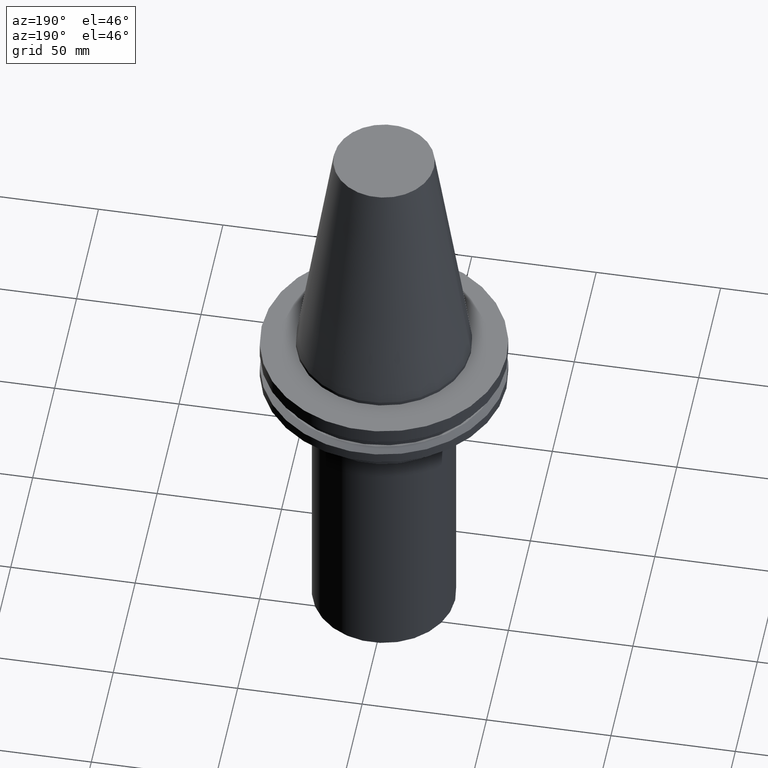
[diagram: clean part render]
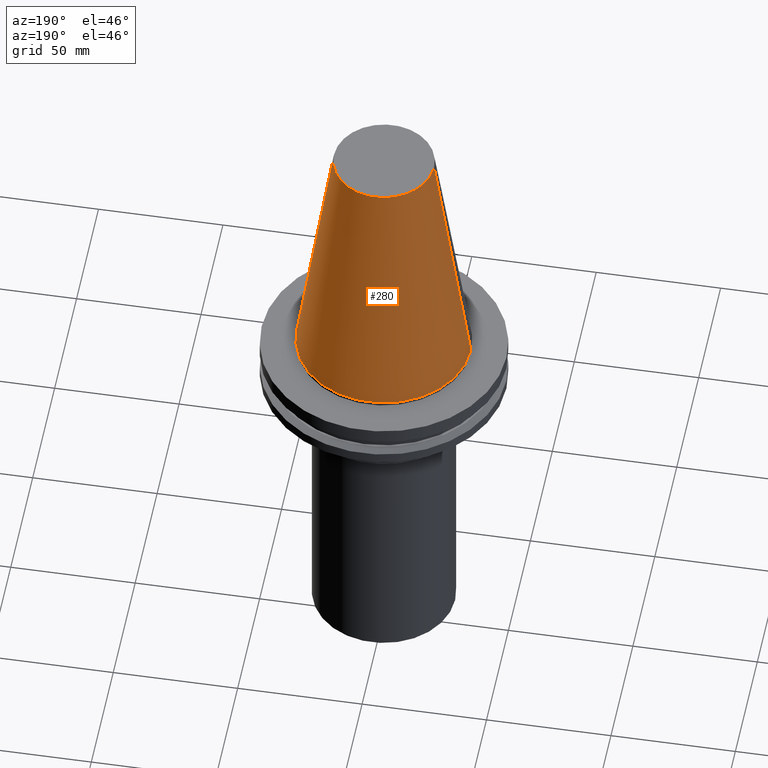
[diagram: same view with one face highlighted and labeled with its STEP entity id]
A machine part, auxiliary view. The second image highlights one B-rep face of the part: STEP entity #280.
In plain terms, the highlighted conical surface has half-angle 8.297 deg.
Its self-contained STEP definition (entity closure, byte-faithful):
#22 = VECTOR ( 'NONE', #404, 999.9999999999998863 ) ;
#29 = EDGE_CURVE ( 'NONE', #834, #587, #670, .T. ) ;
#90 = CARTESIAN_POINT ( 'NONE',  ( 0.000000000000000000, 0.000000000000000000, 0.000000000000000000 ) ) ;
#111 = ORIENTED_EDGE ( 'NONE', *, *, #29, .F. ) ;
#148 = VECTOR ( 'NONE', #689, 999.9999999999998863 ) ;
#159 = DIRECTION ( 'NONE',  ( -0.000000000000000000, -0.000000000000000000, 1.000000000000000000 ) ) ;
#212 = EDGE_CURVE ( 'NONE', #546, #834, #652, .T. ) ;
#241 = VERTEX_POINT ( 'NONE', #590 ) ;
#258 = DIRECTION ( 'NONE',  ( 1.000000000000000000, 0.000000000000000000, 0.000000000000000000 ) ) ;
#264 = ORIENTED_EDGE ( 'NONE', *, *, #394, .T. ) ;
#280 = ADVANCED_FACE ( 'NONE', ( #543 ), #303, .T. ) ;
#303 = CONICAL_SURFACE ( 'NONE', #784, 34.92499999999999005, 0.1448138465474119452 ) ;
#328 = DIRECTION ( 'NONE',  ( -0.000000000000000000, -0.000000000000000000, 1.000000000000000000 ) ) ;
#341 = CARTESIAN_POINT ( 'NONE',  ( 34.92499999999999005, 4.277078946022130098E-15, 0.000000000000000000 ) ) ;
#358 = DIRECTION ( 'NONE',  ( -1.000000000000000000, 0.000000000000000000, 0.000000000000000000 ) ) ;
#394 = EDGE_CURVE ( 'NONE', #546, #241, #550, .T. ) ;
#404 = DIRECTION ( 'NONE',  ( -0.1443082272672999988, 0.000000000000000000, -0.9895327864921755756 ) ) ;
#406 = ORIENTED_EDGE ( 'NONE', *, *, #212, .F. ) ;
#418 = DIRECTION ( 'NONE',  ( 1.000000000000000000, 0.000000000000000000, 0.000000000000000000 ) ) ;
#430 = EDGE_CURVE ( 'NONE', #241, #587, #589, .T. ) ;
#457 = CARTESIAN_POINT ( 'NONE',  ( -34.92499999999999005, 0.000000000000000000, 0.000000000000000000 ) ) ;
#479 = CARTESIAN_POINT ( 'NONE',  ( -20.10819343178871321, 0.000000000000000000, 101.5999999999999801 ) ) ;
#485 = CARTESIAN_POINT ( 'NONE',  ( 0.000000000000000000, 0.000000000000000000, 0.000000000000000000 ) ) ;
#543 = FACE_OUTER_BOUND ( 'NONE', #747, .T. ) ;
#546 = VERTEX_POINT ( 'NONE', #575 ) ;
#547 = DIRECTION ( 'NONE',  ( 0.000000000000000000, 0.000000000000000000, -1.000000000000000000 ) ) ;
#550 = LINE ( 'NONE', #341, #148 ) ;
#575 = CARTESIAN_POINT ( 'NONE',  ( 20.10819343178871321, 3.369811209154858606E-15, 101.5999999999999801 ) ) ;
#587 = VERTEX_POINT ( 'NONE', #598 ) ;
#589 = CIRCLE ( 'NONE', #679, 34.92499999999999005 ) ;
#590 = CARTESIAN_POINT ( 'NONE',  ( 34.92499999999999005, 4.277078946022130098E-15, 0.000000000000000000 ) ) ;
#598 = CARTESIAN_POINT ( 'NONE',  ( -34.92499999999999005, 0.000000000000000000, 0.000000000000000000 ) ) ;
#642 = ORIENTED_EDGE ( 'NONE', *, *, #430, .T. ) ;
#652 = CIRCLE ( 'NONE', #756, 20.10819343178871321 ) ;
#670 = LINE ( 'NONE', #457, #22 ) ;
#679 = AXIS2_PLACEMENT_3D ( 'NONE', #485, #159, #418 ) ;
#689 = DIRECTION ( 'NONE',  ( 0.1443082272672999988, 1.767266086135277066E-17, -0.9895327864921755756 ) ) ;
#747 = EDGE_LOOP ( 'NONE', ( #406, #264, #642, #111 ) ) ;
#756 = AXIS2_PLACEMENT_3D ( 'NONE', #840, #328, #258 ) ;
#784 = AXIS2_PLACEMENT_3D ( 'NONE', #90, #547, #358 ) ;
#834 = VERTEX_POINT ( 'NONE', #479 ) ;
#840 = CARTESIAN_POINT ( 'NONE',  ( 0.000000000000000000, 0.000000000000000000, 101.5999999999999801 ) ) ;